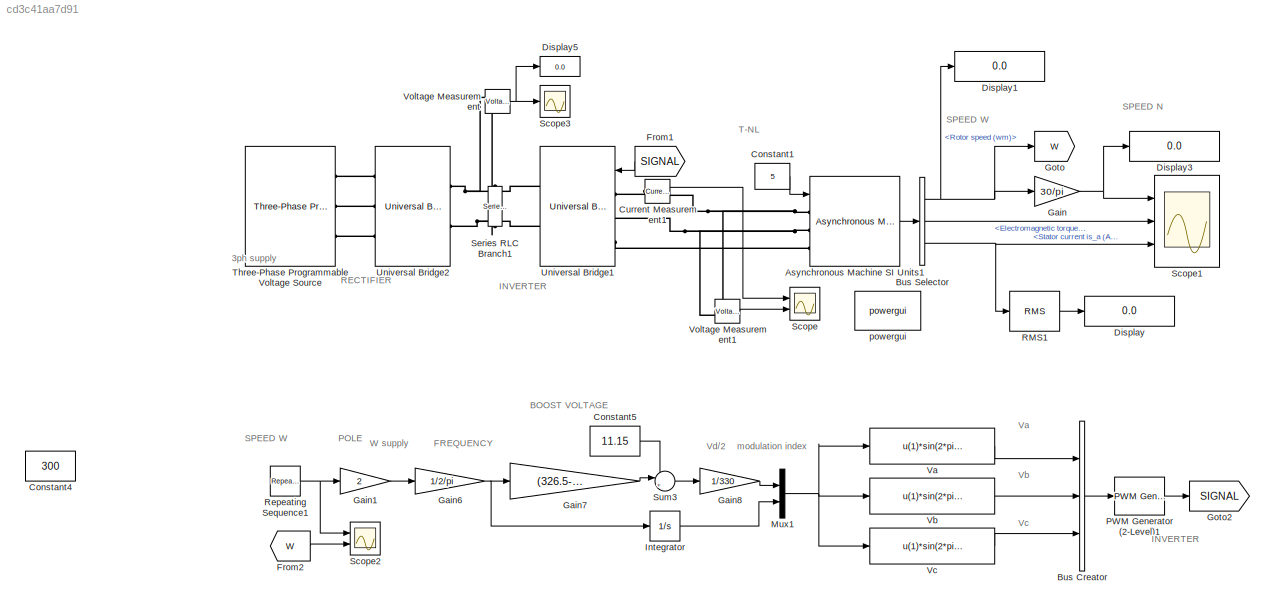
MODEL slx_cd3c41aa7d91
KIND model
CONFIG AbsTol = auto
CONFIG EnableMultiTasking = on
CONFIG FixedStep = auto
CONFIG MaxStep = 10e-4
CONFIG MinStep = auto
CONFIG RelTol = 1e-3
CONFIG SampleTimeConstraint = Unconstrained
CONFIG SolverName = ode23s
CONFIG StartTime = 0.0
CONFIG StopTime = 10.0
BLOCK [Reference] Asynchronous Machine SI Units1  REF=spsAsynchronousMachineSIUnitsLib/Asynchronous Machine
SI Units
  Ports = [1, 1, 0, 0, 0, 3]
  SourceBlock = spsAsynchronousMachineSIUnitsLib/Asynchronous Machine\nSI Units
  SourceProductBaseCode = PS
  SourceType = Asynchronous Machine
BLOCK [BusCreator] Bus Creator
  DisplayOption = bar
  InheritFromInputs = on
  Inputs = 3
  Ports = [3, 1]
BLOCK [BusSelector] Bus Selector
  OutputSignals = Mechanical.Rotor speed (wm),Mechanical.Electromagnetic torque Te (N*m),Stator measurements.Stator current is_a (A)
  Ports = [1, 3]
BLOCK [Constant] Constant1
  Value = 5
BLOCK [Constant] Constant4
  Value = 300
BLOCK [Constant] Constant5
  Value = 11.15
BLOCK [Reference] Current Measurement1  REF=spsCurrentMeasurementLib/Current Measurement
  Ports = [0, 1, 0, 0, 0, 1, 1]
  SourceBlock = spsCurrentMeasurementLib/Current Measurement
  SourceProductBaseCode = PS
  SourceType = Current Measurement
  UserDataPersistent = on
BLOCK [Display] Display
  Decimation = 1
  Ports = [1]
BLOCK [Display] Display1
  Decimation = 1
  Ports = [1]
BLOCK [Display] Display3
  Decimation = 1
  Ports = [1]
BLOCK [Display] Display5
  Decimation = 1
  Ports = [1]
BLOCK [From] From1
  GotoTag = SIGNAL
  NameLocation = top
BLOCK [From] From2
  GotoTag = W
BLOCK [Gain] Gain
  Gain = 30/pi
BLOCK [Gain] Gain1
  Gain = 2
BLOCK [Gain] Gain6
  Gain = 1/2/pi
BLOCK [Gain] Gain7
  Gain = (326.5-11.15)/50
BLOCK [Gain] Gain8
  Gain = 1/330
BLOCK [Goto] Goto
  GotoTag = W
BLOCK [Goto] Goto2
  GotoTag = SIGNAL
BLOCK [Integrator] Integrator
  Ports = [1, 1]
BLOCK [Mux] Mux1
  DisplayOption = bar
  Inputs = 2
  Ports = [2, 1]
BLOCK [Reference] PWM Generator (2-Level)1  REF=spsPWMGenerator2LevelLib/PWM Generator
(2-Level)
  Ports = [1, 1]
  SourceBlock = spsPWMGenerator2LevelLib/PWM Generator\n(2-Level)
  SourceProductBaseCode = PS
  SourceType = PWM Generator (2-Level)
BLOCK [Reference] RMS1  REF=spsRMSLib/RMS
  Ports = [1, 1]
  SourceBlock = spsRMSLib/RMS
  SourceProductBaseCode = PS
  SourceType = RMS
BLOCK [Reference] Repeating Sequence1  REF=simulink/Sources/Repeating
Sequence
  Ports = [0, 1]
  SourceBlock = simulink/Sources/Repeating\nSequence
  SourceProductBaseCode = SL
  SourceType = Repeating table
BLOCK [Scope] Scope
  Floating = off
  NumInputPorts = 2
  Ports = [2]
  ScopeSpecificationString = C++SS(StrPVP('SaveName','ScopeData2'),StrPVP('LimitDataPoints','on'),StrPVP('DataFormat','Array'),StrPVP('Decimation','1'),StrPVP('BlockParamSampleInput','off'))
BLOCK [Scope] Scope1
  Floating = off
  NumInputPorts = 3
  Ports = [3]
  ScopeSpecificationString = Simulink.scopes.TimeScopeBlockCfg('CurrentConfiguration', extmgr.ConfigurationSet(extmgr.Configuration('Core','General UI',true,'FigureColor',[1 1 1]),extmgr.Configuration('Core','Source UI',true),extmgr.Configuration('Sources','WiredSimulink',true),extmgr.Configuration('Visuals','Time Domain',true,'SerializedDisplays',{struct('MinYLimReal','-365.75733','MaxYLimReal','3214.13617','YLabelReal','','...<+3157ch>
BLOCK [Scope] Scope2
  Floating = off
  NumInputPorts = 2
  Ports = [2]
  ScopeSpecificationString = Simulink.scopes.TimeScopeBlockCfg('CurrentConfiguration', extmgr.ConfigurationSet(extmgr.Configuration('Core','General UI',true,'FigureColor',[1 1 1]),extmgr.Configuration('Core','Source UI',true),extmgr.Configuration('Sources','WiredSimulink',true,'DataLoggingVariableName','ScopeData3'),extmgr.Configuration('Visuals','Time Domain',true,'SerializedDisplays',{struct('MinYLimReal','-38.41514','MaxYL...<+1714ch>
BLOCK [Scope] Scope3
  Floating = off
  NumInputPorts = 1
  Ports = [1]
  ScopeSpecificationString = Simulink.scopes.TimeScopeBlockCfg('CurrentConfiguration', extmgr.ConfigurationSet(extmgr.Configuration('Core','General UI',true,'FigureColor',[1 1 1]),extmgr.Configuration('Core','Source UI',true),extmgr.Configuration('Sources','WiredSimulink',true,'DataLoggingVariableName','ScopeData1'),extmgr.Configuration('Visuals','Time Domain',true,'SerializedDisplays',{struct('MinYLimReal','-82.86964','MaxYL...<+1603ch>
BLOCK [Reference] Series RLC Branch1  REF=spsSeriesRLCBranchLib/Series RLC Branch
  NameLocation = left
  Ports = [0, 0, 0, 0, 0, 1, 1]
  SourceBlock = spsSeriesRLCBranchLib/Series RLC Branch
  SourceProductBaseCode = PS
  SourceType = Series RLC Branch
BLOCK [Sum] Sum3
  Inputs = |++
  Ports = [2, 1]
BLOCK [Reference] Three-Phase Programmable Voltage Source  REF=spsThreePhaseProgrammableVoltageSourceLib/Three-Phase
Programmable
Voltage Source
  Ports = [0, 0, 0, 0, 0, 1, 3]
  SourceBlock = spsThreePhaseProgrammableVoltageSourceLib/Three-Phase\nProgrammable\nVoltage Source
  SourceProductBaseCode = PS
  SourceType = Three-Phase Programmable Voltage Source
BLOCK [Reference] Universal Bridge1  REF=spsUniversalBridgeLib/Universal Bridge
  Ports = [1, 0, 0, 0, 0, 3, 2]
  SourceBlock = spsUniversalBridgeLib/Universal Bridge
  SourceProductBaseCode = PS
  SourceType = Universal Bridge
BLOCK [Reference] Universal Bridge2  REF=spsUniversalBridgeLib/Universal Bridge
  Ports = [0, 0, 0, 0, 0, 3, 2]
  SourceBlock = spsUniversalBridgeLib/Universal Bridge
  SourceProductBaseCode = PS
  SourceType = Universal Bridge
BLOCK [Fcn] Va
  Expr = u(1)*sin(2*pi*u(2))
  NameLocation = top
BLOCK [Fcn] Vb
  Expr = u(1)*sin(2*pi*u(2)-(2*pi/3))
  NameLocation = top
BLOCK [Fcn] Vc
  Expr = u(1)*sin(2*pi*u(2)+(2*pi/3))
BLOCK [Reference] Voltage Measurement  REF=spsVoltageMeasurementLib/Voltage Measurement
  Ports = [0, 1, 0, 0, 0, 2]
  SourceBlock = spsVoltageMeasurementLib/Voltage Measurement
  SourceProductBaseCode = PS
  SourceType = Voltage Measurement
  UserDataPersistent = on
BLOCK [Reference] Voltage Measurement1  REF=spsVoltageMeasurementLib/Voltage Measurement
  Ports = [0, 1, 0, 0, 0, 2]
  SourceBlock = spsVoltageMeasurementLib/Voltage Measurement
  SourceProductBaseCode = PS
  SourceType = Voltage Measurement
  UserDataPersistent = on
BLOCK [Reference] powergui  REF=spspowerguiLib/powergui
  Ports = []
  Priority = 1
  SourceBlock = spspowerguiLib/powergui
  SourceProductBaseCode = PS
  SourceType = PSB option menu block
ANNOTATION (root): 3ph supply
ANNOTATION (root): SPEED N
ANNOTATION (root): SPEED W
ANNOTATION (root): INVERTER
ANNOTATION (root): RECTIFIER
ANNOTATION (root): Va
ANNOTATION (root): Vb
ANNOTATION (root): Vc
ANNOTATION (root): T-NL
ANNOTATION (root): BOOST VOLTAGE
ANNOTATION (root): FREQUENCY
ANNOTATION (root): POLE
ANNOTATION (root): Vd/2
ANNOTATION (root): W supply
ANNOTATION (root): modulation index
LINE Asynchronous Machine SI Units1:1 -> Bus Selector:1
LINE Bus Creator:1 -> PWM Generator (2-Level)1:1
NET Bus Selector:1 -> Display1:1, Gain:1, Goto:1
LINE Bus Selector:2 -> Scope1:2
NET Bus Selector:3 -> RMS1:1, Scope1:3
LINE Constant1:1 -> Asynchronous Machine SI Units1:1
LINE Constant5:1 -> Sum3:2
LINE Current Measurement1:1 -> Scope:1
LINE From1:1 -> Universal Bridge1:1
LINE From2:1 -> Scope2:2
LINE Gain1:1 -> Gain6:1
NET Gain6:1 -> Gain7:1, Integrator:1
LINE Gain7:1 -> Sum3:1
LINE Gain8:1 -> Mux1:1
NET Gain:1 -> Display3:1, Scope1:1
LINE Integrator:1 -> Mux1:2
NET Mux1:1 -> Va:1, Vb:1, Vc:1
LINE PWM Generator (2-Level)1:1 -> Goto2:1
LINE RMS1:1 -> Display:1
NET Repeating Sequence1:1 -> Gain1:1, Scope2:1
LINE Sum3:1 -> Gain8:1
LINE Va:1 -> Bus Creator:1
LINE Vb:1 -> Bus Creator:2
LINE Vc:1 -> Bus Creator:3
LINE Voltage Measurement1:1 -> Scope:2
NET Voltage Measurement:1 -> Display5:1, Scope3:1
PNET net1: Asynchronous Machine SI Units1:LConn1 -- Current Measurement1:RConn1 -- Voltage Measurement1:LConn1
PNET net2: Asynchronous Machine SI Units1:LConn2 -- Universal Bridge1:LConn2 -- Voltage Measurement1:LConn2
PLINE Asynchronous Machine SI Units1:LConn3 -- Universal Bridge1:LConn3
PLINE Current Measurement1:LConn1 -- Universal Bridge1:LConn1
PNET net3: Series RLC Branch1:LConn1 -- Universal Bridge1:RConn1 -- Universal Bridge2:RConn1 -- Voltage Measurement:LConn1
PNET net4: Series RLC Branch1:RConn1 -- Universal Bridge1:RConn2 -- Universal Bridge2:RConn2 -- Voltage Measurement:LConn2
PLINE Three-Phase Programmable Voltage Source:RConn1 -- Universal Bridge2:LConn1
PLINE Three-Phase Programmable Voltage Source:RConn2 -- Universal Bridge2:LConn2
PLINE Three-Phase Programmable Voltage Source:RConn3 -- Universal Bridge2:LConn3
note: NET lines group one-source signal fan-out (src -> all destinations, sorted); 1:1 wires keep LINE; PNET lines group multi-terminal physical nets as a canonical sorted terminal list (undirected conserving connections); 2-terminal nets keep the pairwise PLINE form
